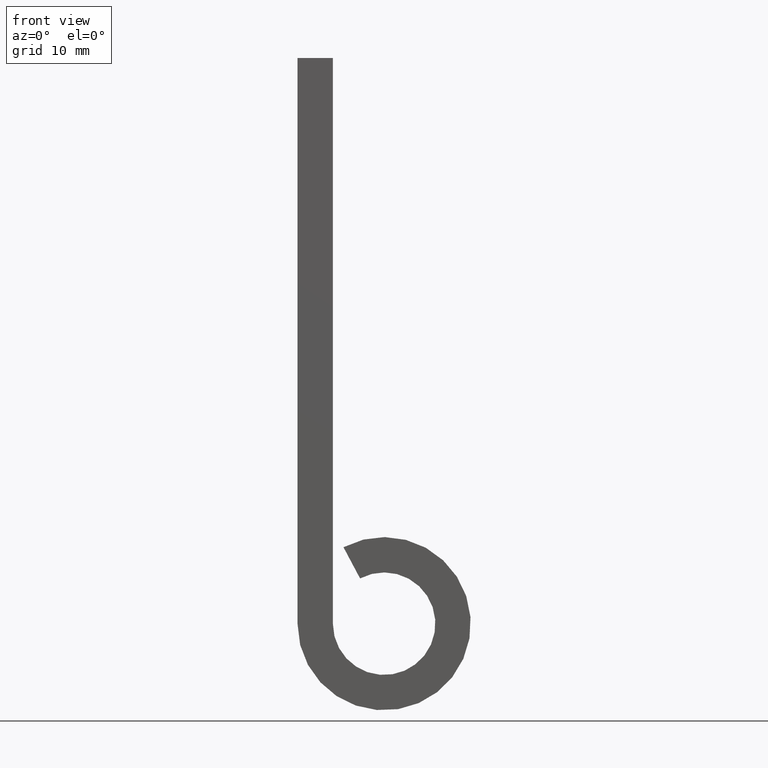
[diagram: clean part render]
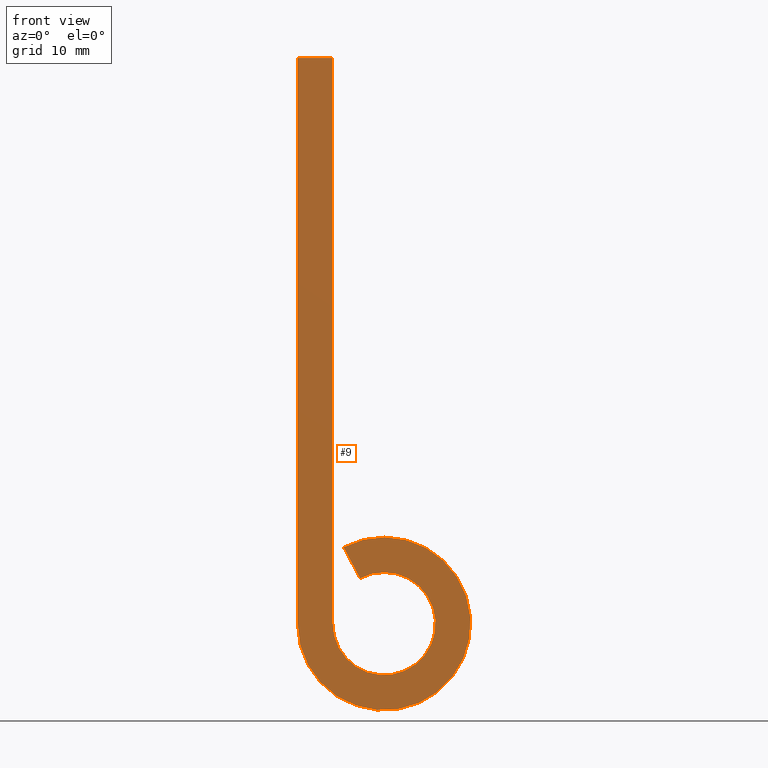
[diagram: same view with one face highlighted and labeled with its STEP entity id]
A machine part, front view. The second image highlights one B-rep face of the part: STEP entity #9.
In plain terms, the highlighted planar face has unit normal (0, -1, 0).
Its self-contained STEP definition (entity closure, byte-faithful):
#9 = ADVANCED_FACE ( 'NONE', ( #10972 ), #13142, .T. ) ;
#87 = ORIENTED_EDGE ( 'NONE', *, *, #6675, .F. ) ;
#104 = CARTESIAN_POINT ( 'NONE',  ( 8.673617379884035472E-15, -20.00000000000000000, 0.000000000000000000 ) ) ;
#960 = ORIENTED_EDGE ( 'NONE', *, *, #4614, .F. ) ;
#975 = VERTEX_POINT ( 'NONE', #2202 ) ;
#1152 = CIRCLE ( 'NONE', #12302, 12.25000000000000711 ) ;
#1644 = ORIENTED_EDGE ( 'NONE', *, *, #10921, .F. ) ;
#1647 = DIRECTION ( 'NONE',  ( 0.000000000000000000, 0.000000000000000000, -1.000000000000000000 ) ) ;
#1750 = CARTESIAN_POINT ( 'NONE',  ( -12.25000000000000000, -20.00000000000000000, 80.00000000000000000 ) ) ;
#2202 = CARTESIAN_POINT ( 'NONE',  ( -3.403061224489794423, -20.00000000000000000, 6.401693080925862311 ) ) ;
#2365 = EDGE_CURVE ( 'NONE', #12747, #5053, #1152, .T. ) ;
#2592 = DIRECTION ( 'NONE',  ( 0.000000000000000000, 1.000000000000000000, -0.000000000000000000 ) ) ;
#3321 = AXIS2_PLACEMENT_3D ( 'NONE', #8128, #11306, #5177 ) ;
#3851 = DIRECTION ( 'NONE',  ( -0.000000000000000000, -1.000000000000000000, 0.000000000000000000 ) ) ;
#4100 = ORIENTED_EDGE ( 'NONE', *, *, #8154, .F. ) ;
#4614 = EDGE_CURVE ( 'NONE', #12380, #5624, #10053, .T. ) ;
#4785 = CARTESIAN_POINT ( 'NONE',  ( -7.250000000000000000, -20.00000000000000000, 80.00000000000000000 ) ) ;
#5022 = CARTESIAN_POINT ( 'NONE',  ( 8.673617379884035472E-15, -20.00000000000000000, 0.000000000000000000 ) ) ;
#5053 = VERTEX_POINT ( 'NONE', #7676 ) ;
#5177 = DIRECTION ( 'NONE',  ( 0.000000000000000000, -0.000000000000000000, -1.000000000000000000 ) ) ;
#5501 = CARTESIAN_POINT ( 'NONE',  ( -12.25000000000000000, -20.00000000000000000, 80.00000000000000000 ) ) ;
#5551 = LINE ( 'NONE', #1750, #8400 ) ;
#5624 = VERTEX_POINT ( 'NONE', #4785 ) ;
#5857 = DIRECTION ( 'NONE',  ( 0.000000000000000000, 0.000000000000000000, -1.000000000000000000 ) ) ;
#5864 = VERTEX_POINT ( 'NONE', #6533 ) ;
#6533 = CARTESIAN_POINT ( 'NONE',  ( -7.250000000000000000, -20.00000000000000000, 0.000000000000000000 ) ) ;
#6675 = EDGE_CURVE ( 'NONE', #5624, #5864, #13225, .T. ) ;
#6958 = EDGE_LOOP ( 'NONE', ( #960, #1644, #11269, #9202, #4100, #87 ) ) ;
#7527 = VECTOR ( 'NONE', #9712, 1000.000000000000114 ) ;
#7669 = CARTESIAN_POINT ( 'NONE',  ( -5.750000000000000888, -20.00000000000000000, 10.81665382639196871 ) ) ;
#7676 = CARTESIAN_POINT ( 'NONE',  ( -12.24999999999999822, -20.00000000000000000, 2.250288493433262686E-15 ) ) ;
#7691 = EDGE_CURVE ( 'NONE', #975, #12747, #11030, .T. ) ;
#7941 = DIRECTION ( 'NONE',  ( 0.000000000000000000, 0.000000000000000000, -1.000000000000000000 ) ) ;
#8128 = CARTESIAN_POINT ( 'NONE',  ( 8.673617379884035472E-15, -20.00000000000000000, 0.000000000000000000 ) ) ;
#8154 = EDGE_CURVE ( 'NONE', #5864, #975, #9069, .T. ) ;
#8400 = VECTOR ( 'NONE', #11871, 1000.000000000000000 ) ;
#8559 = AXIS2_PLACEMENT_3D ( 'NONE', #5022, #3851, #7941 ) ;
#9069 = CIRCLE ( 'NONE', #8559, 7.250000000000007105 ) ;
#9202 = ORIENTED_EDGE ( 'NONE', *, *, #7691, .F. ) ;
#9712 = DIRECTION ( 'NONE',  ( -0.4693877551020408379, -0.000000000000000000, 0.8829921490932218786 ) ) ;
#10053 = LINE ( 'NONE', #5501, #12621 ) ;
#10422 = DIRECTION ( 'NONE',  ( 1.000000000000000000, 0.000000000000000000, 0.000000000000000000 ) ) ;
#10873 = CARTESIAN_POINT ( 'NONE',  ( -7.250000000000000000, -20.00000000000000000, 80.00000000000000000 ) ) ;
#10921 = EDGE_CURVE ( 'NONE', #5053, #12380, #5551, .T. ) ;
#10972 = FACE_OUTER_BOUND ( 'NONE', #6958, .T. ) ;
#11030 = LINE ( 'NONE', #12838, #7527 ) ;
#11269 = ORIENTED_EDGE ( 'NONE', *, *, #2365, .F. ) ;
#11306 = DIRECTION ( 'NONE',  ( 0.000000000000000000, -1.000000000000000000, 0.000000000000000000 ) ) ;
#11471 = CARTESIAN_POINT ( 'NONE',  ( -12.25000000000000000, -20.00000000000000000, 80.00000000000000000 ) ) ;
#11871 = DIRECTION ( 'NONE',  ( -0.000000000000000000, -0.000000000000000000, 1.000000000000000000 ) ) ;
#12092 = VECTOR ( 'NONE', #1647, 1000.000000000000000 ) ;
#12302 = AXIS2_PLACEMENT_3D ( 'NONE', #104, #2592, #5857 ) ;
#12380 = VERTEX_POINT ( 'NONE', #11471 ) ;
#12621 = VECTOR ( 'NONE', #10422, 1000.000000000000000 ) ;
#12747 = VERTEX_POINT ( 'NONE', #7669 ) ;
#12838 = CARTESIAN_POINT ( 'NONE',  ( -5.750000000000000888, -20.00000000000000000, 10.81665382639196871 ) ) ;
#13142 = PLANE ( 'NONE',  #3321 ) ;
#13225 = LINE ( 'NONE', #10873, #12092 ) ;